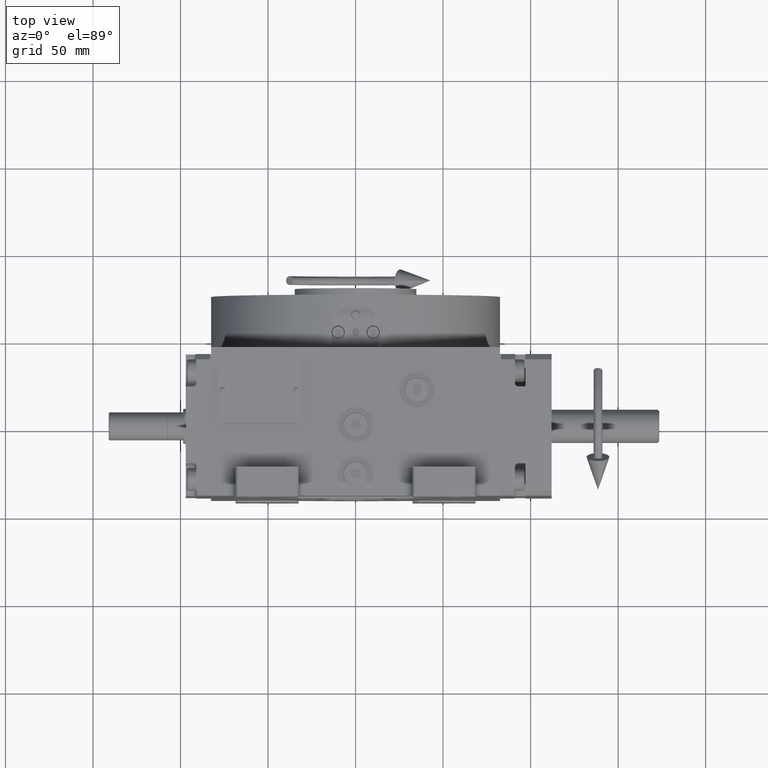
[diagram: clean part render]
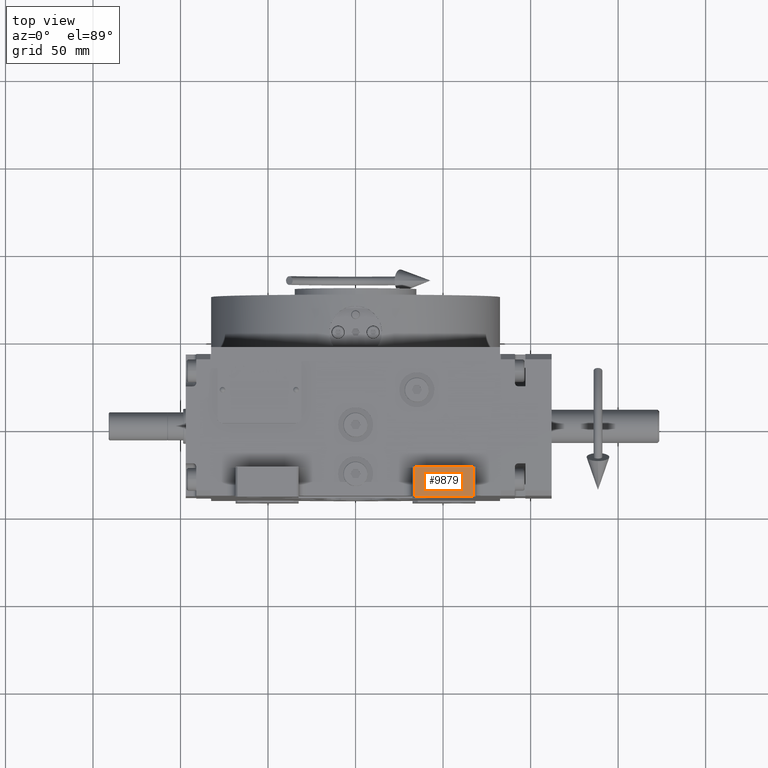
[diagram: same view with one face highlighted and labeled with its STEP entity id]
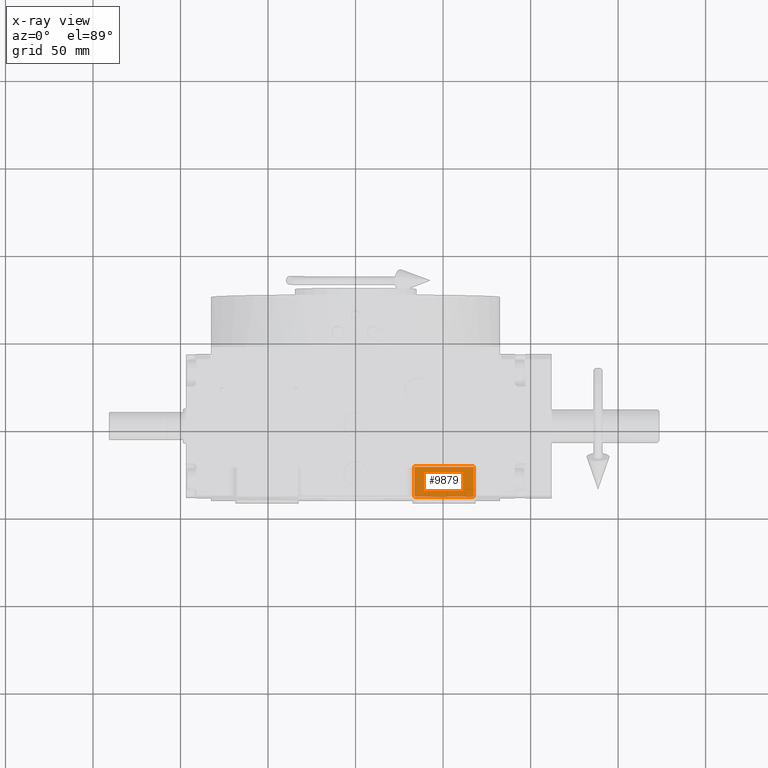
[diagram: x-ray of the same camera — body ghosted, the highlighted face saturated]
A machine part, top view. The second image highlights one B-rep face of the part: STEP entity #9879.
The next image is the same camera in x-ray: the body ghosted, the highlighted face saturated — about 0% of this face is hidden behind the body in this view.
In plain terms, the highlighted planar face has unit normal (0, 0, 1).
Its self-contained STEP definition (entity closure, byte-faithful):
#1762 = LINE ( 'NONE', #35493, #48047 ) ;
#2144 = DIRECTION ( 'NONE',  ( 0.000000000000000000, 1.000000000000000000, 0.000000000000000000 ) ) ;
#7441 = VECTOR ( 'NONE', #68442, 1000.000000000000000 ) ;
#9285 = LINE ( 'NONE', #36818, #53446 ) ;
#9879 = ADVANCED_FACE ( 'NONE', ( #67464 ), #50967, .T. ) ;
#10931 = VERTEX_POINT ( 'NONE', #64753 ) ;
#12071 = CARTESIAN_POINT ( 'NONE',  ( 68.50000000000000000, -24.50000000000000000, 140.0000000000000000 ) ) ;
#12374 = ORIENTED_EDGE ( 'NONE', *, *, #16909, .F. ) ;
#16909 = EDGE_CURVE ( 'NONE', #65875, #19699, #1762, .T. ) ;
#18916 = CARTESIAN_POINT ( 'NONE',  ( 67.50000000000000000, -24.50000000000000000, 140.0000000000000000 ) ) ;
#18931 = AXIS2_PLACEMENT_3D ( 'NONE', #12071, #61600, #57190 ) ;
#19699 = VERTEX_POINT ( 'NONE', #49119 ) ;
#22713 = EDGE_CURVE ( 'NONE', #10931, #65875, #33264, .T. ) ;
#22985 = VECTOR ( 'NONE', #72503, 1000.000000000000000 ) ;
#27769 = CARTESIAN_POINT ( 'NONE',  ( 67.50000000000000000, -41.50000000000000000, 140.0000000000000000 ) ) ;
#31051 = ORIENTED_EDGE ( 'NONE', *, *, #64275, .T. ) ;
#32623 = EDGE_CURVE ( 'NONE', #43555, #19699, #45339, .T. ) ;
#33264 = LINE ( 'NONE', #27769, #22985 ) ;
#35117 = CARTESIAN_POINT ( 'NONE',  ( 33.49999999999934630, -41.50000000000000000, 140.0000000000000000 ) ) ;
#35493 = CARTESIAN_POINT ( 'NONE',  ( 33.49999999999934630, -41.50000000000000000, 140.0000000000000000 ) ) ;
#36818 = CARTESIAN_POINT ( 'NONE',  ( 67.50000000000000000, -41.50000000000000000, 140.0000000000000000 ) ) ;
#40186 = ORIENTED_EDGE ( 'NONE', *, *, #32623, .T. ) ;
#43017 = DIRECTION ( 'NONE',  ( 0.000000000000000000, 1.000000000000000000, 0.000000000000000000 ) ) ;
#43555 = VERTEX_POINT ( 'NONE', #71667 ) ;
#45339 = LINE ( 'NONE', #18916, #7441 ) ;
#48047 = VECTOR ( 'NONE', #2144, 1000.000000000000000 ) ;
#49119 = CARTESIAN_POINT ( 'NONE',  ( 33.49999999999934630, -24.50000000000000000, 140.0000000000000000 ) ) ;
#50967 = PLANE ( 'NONE',  #18931 ) ;
#53239 = EDGE_LOOP ( 'NONE', ( #40186, #12374, #63176, #31051 ) ) ;
#53446 = VECTOR ( 'NONE', #43017, 1000.000000000000000 ) ;
#57190 = DIRECTION ( 'NONE',  ( -1.000000000000000000, 0.000000000000000000, 0.000000000000000000 ) ) ;
#61600 = DIRECTION ( 'NONE',  ( 0.000000000000000000, 0.000000000000000000, 1.000000000000000000 ) ) ;
#63176 = ORIENTED_EDGE ( 'NONE', *, *, #22713, .F. ) ;
#64275 = EDGE_CURVE ( 'NONE', #10931, #43555, #9285, .T. ) ;
#64753 = CARTESIAN_POINT ( 'NONE',  ( 67.50000000000000000, -41.50000000000000000, 140.0000000000000000 ) ) ;
#65875 = VERTEX_POINT ( 'NONE', #35117 ) ;
#67464 = FACE_OUTER_BOUND ( 'NONE', #53239, .T. ) ;
#68442 = DIRECTION ( 'NONE',  ( -1.000000000000000000, 0.000000000000000000, 0.000000000000000000 ) ) ;
#71667 = CARTESIAN_POINT ( 'NONE',  ( 67.50000000000000000, -24.50000000000000000, 140.0000000000000000 ) ) ;
#72503 = DIRECTION ( 'NONE',  ( -1.000000000000000000, 0.000000000000000000, 0.000000000000000000 ) ) ;